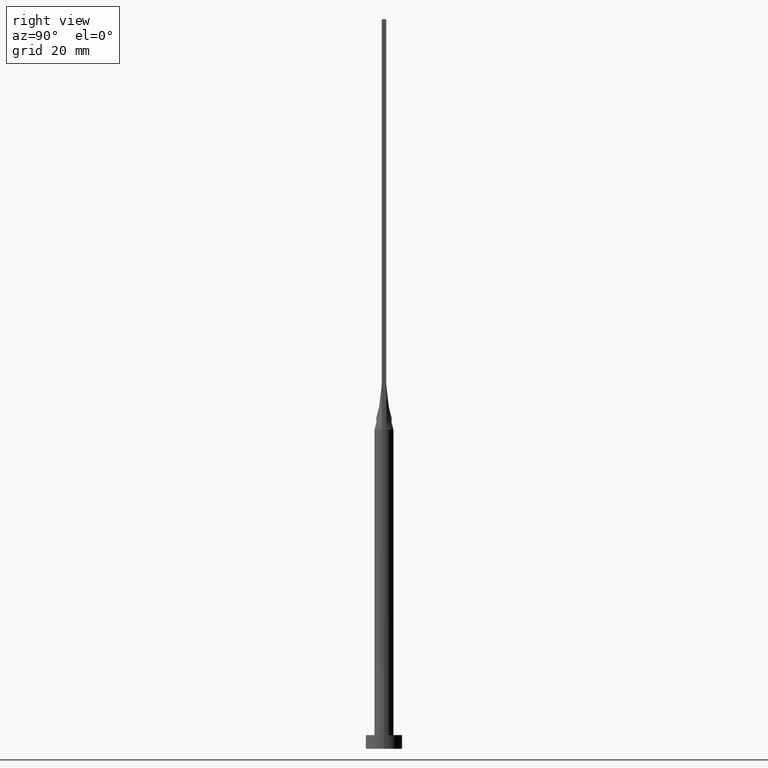
[diagram: clean part render]
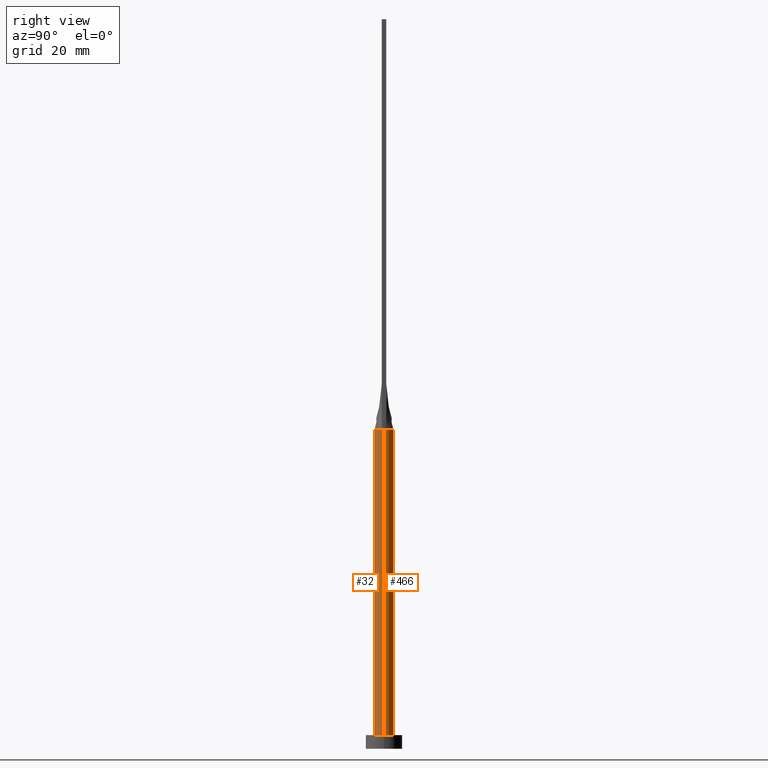
[diagram: same view with one multi-face feature highlighted, each face labeled with its STEP entity id]
A machine part, right view. The highlighted faces form ONE feature: a constant-radius fillet chain: 2 tangent blend faces with common blend radius 2.1 mm. The faces share edges in the B-rep.
Their STEP definitions:
[1] entity #466 (Cylinder):
#2 = EDGE_LOOP ( 'NONE', ( #580, #82, #55, #319, #169, #505 ) ) ;
#15 = DIRECTION ( 'NONE',  ( -0.000000000000000000, -0.000000000000000000, -1.000000000000000000 ) ) ;
#18 = DIRECTION ( 'NONE',  ( 0.000000000000000000, 0.000000000000000000, 1.000000000000000000 ) ) ;
#22 = CARTESIAN_POINT ( 'NONE',  ( -2.031019593402089818, 0.5344793603115657321, 70.00000000000000000 ) ) ;
#34 = VERTEX_POINT ( 'NONE', #460 ) ;
#41 = DIRECTION ( 'NONE',  ( 1.000000000000000000, 0.000000000000000000, 0.000000000000000000 ) ) ;
#43 = CARTESIAN_POINT ( 'NONE',  ( 2.030996101999494652, 0.5344731476277209126, 70.00000000000000000 ) ) ;
#49 = DIRECTION ( 'NONE',  ( -0.000000000000000000, -0.000000000000000000, -1.000000000000000000 ) ) ;
#55 = ORIENTED_EDGE ( 'NONE', *, *, #74, .T. ) ;
#61 = AXIS2_PLACEMENT_3D ( 'NONE', #158, #225, #394 ) ;
#64 = CARTESIAN_POINT ( 'NONE',  ( -1.021961681204346384, 1.852908961101259022, 70.00000000000001421 ) ) ;
#69 = CARTESIAN_POINT ( 'NONE',  ( -1.719043754744861596, 1.223020672007445242, 70.00000000000000000 ) ) ;
#74 = EDGE_CURVE ( 'NONE', #34, #534, #547, .T. ) ;
#78 = VECTOR ( 'NONE', #49, 1000.000000000000000 ) ;
#82 = ORIENTED_EDGE ( 'NONE', *, *, #223, .T. ) ;
#89 = CARTESIAN_POINT ( 'NONE',  ( 0.000000000000000000, 0.000000000000000000, 70.00000000000000000 ) ) ;
#92 = CARTESIAN_POINT ( 'NONE',  ( 1.987786580065029174, 0.6981017315960605929, 70.00000000000000000 ) ) ;
#98 = CARTESIAN_POINT ( 'NONE',  ( -0.5389299406762299016, 2.046272663899431965, 70.00000000000001421 ) ) ;
#130 = VERTEX_POINT ( 'NONE', #22 ) ;
#144 = CARTESIAN_POINT ( 'NONE',  ( -1.987786580065029174, 0.6981017315960602598, 70.00000000000000000 ) ) ;
#158 = CARTESIAN_POINT ( 'NONE',  ( 0.000000000000000000, 0.000000000000000000, 70.00000000000000000 ) ) ;
#160 = VECTOR ( 'NONE', #15, 1000.000000000000000 ) ;
#164 = DIRECTION ( 'NONE',  ( -0.000000000000000000, -0.000000000000000000, -1.000000000000000000 ) ) ;
#167 = DIRECTION ( 'NONE',  ( -1.000000000000000000, 0.000000000000000000, 0.000000000000000000 ) ) ;
#169 = ORIENTED_EDGE ( 'NONE', *, *, #296, .F. ) ;
#186 = CARTESIAN_POINT ( 'NONE',  ( 0.000000000000000000, 0.000000000000000000, 3.000000000000000000 ) ) ;
#191 = CARTESIAN_POINT ( 'NONE',  ( -2.100000000000000089, 0.000000000000000000, 70.00000000000000000 ) ) ;
#205 = DIRECTION ( 'NONE',  ( 0.000000000000000000, 0.000000000000000000, 1.000000000000000000 ) ) ;
#207 = LINE ( 'NONE', #573, #78 ) ;
#210 = EDGE_CURVE ( 'NONE', #304, #457, #260, .T. ) ;
#223 = EDGE_CURVE ( 'NONE', #304, #34, #207, .T. ) ;
#225 = DIRECTION ( 'NONE',  ( 0.000000000000000000, 0.000000000000000000, 1.000000000000000000 ) ) ;
#228 = CARTESIAN_POINT ( 'NONE',  ( 1.583604922800830428, 1.399063468093436624, 70.00000000000000000 ) ) ;
#236 = CARTESIAN_POINT ( 'NONE',  ( 0.5389299406762297906, 2.046272663899431077, 70.00000000000000000 ) ) ;
#239 = CARTESIAN_POINT ( 'NONE',  ( 1.719043754744862040, 1.223020672007445464, 69.99999999999998579 ) ) ;
#260 = CIRCLE ( 'NONE', #416, 2.100000000000000089 ) ;
#273 = CARTESIAN_POINT ( 'NONE',  ( 0.000000000000000000, 0.000000000000000000, 70.00000000000000000 ) ) ;
#276 = CARTESIAN_POINT ( 'NONE',  ( -1.235326090059014836, 1.714395692508636326, 70.00000000000001421 ) ) ;
#281 = AXIS2_PLACEMENT_3D ( 'NONE', #89, #164, #167 ) ;
#296 = EDGE_CURVE ( 'NONE', #130, #443, #311, .T. ) ;
#304 = VERTEX_POINT ( 'NONE', #489 ) ;
#311 = CIRCLE ( 'NONE', #61, 2.100000000000000089 ) ;
#319 = ORIENTED_EDGE ( 'NONE', *, *, #493, .F. ) ;
#320 = CARTESIAN_POINT ( 'NONE',  ( -2.100000000000000089, -1.080980291041873360E-16, 70.00000000000000000 ) ) ;
#323 = EDGE_CURVE ( 'NONE', #457, #130, #417, .T. ) ;
#324 = CARTESIAN_POINT ( 'NONE',  ( -0.2698109971861040179, 2.100000000000000089, 70.00000000000001421 ) ) ;
#369 = DIRECTION ( 'NONE',  ( 1.000000000000000000, 0.000000000000000000, 0.000000000000000000 ) ) ;
#374 = LINE ( 'NONE', #191, #160 ) ;
#380 = CARTESIAN_POINT ( 'NONE',  ( 1.235326090059014614, 1.714395692508636770, 70.00000000000001421 ) ) ;
#394 = DIRECTION ( 'NONE',  ( 1.000000000000000000, 0.000000000000000000, 0.000000000000000000 ) ) ;
#397 = FACE_OUTER_BOUND ( 'NONE', #2, .T. ) ;
#416 = AXIS2_PLACEMENT_3D ( 'NONE', #273, #205, #41 ) ;
#417 = B_SPLINE_CURVE_WITH_KNOTS ( 'NONE', 3,
 ( #502, #92, #512, #239, #228, #380, #477, #236, #473, #324, #98, #64, #276, #423, #69, #556, #144, #470 ),
 .UNSPECIFIED., .F., .F.,
 ( 4, 2, 2, 2, 2, 2, 2, 2, 4 ),
 ( 0.000000000000000000, 0.1250000000000000278, 0.2500000000000000555, 0.3750000000000001110, 0.5000000000000000000, 0.6250000000000000000, 0.7500000000000000000, 0.8750000000000001110, 1.000000000000000000 ),
 .UNSPECIFIED. ) ;
#423 = CARTESIAN_POINT ( 'NONE',  ( -1.583604922800830428, 1.399063468093436402, 70.00000000000000000 ) ) ;
#443 = VERTEX_POINT ( 'NONE', #320 ) ;
#457 = VERTEX_POINT ( 'NONE', #43 ) ;
#460 = CARTESIAN_POINT ( 'NONE',  ( 2.100000000000000089, 2.571758278209441957E-16, 3.000000000000000000 ) ) ;
#466 = ADVANCED_FACE ( 'NONE', ( #397 ), #497, .T. ) ;
#470 = CARTESIAN_POINT ( 'NONE',  ( -2.031019593402089818, 0.5344793603115657321, 70.00000000000000000 ) ) ;
#473 = CARTESIAN_POINT ( 'NONE',  ( 0.2698109971861041290, 2.100000000000000089, 70.00000000000000000 ) ) ;
#477 = CARTESIAN_POINT ( 'NONE',  ( 1.021961681204346606, 1.852908961101259244, 70.00000000000001421 ) ) ;
#489 = CARTESIAN_POINT ( 'NONE',  ( 2.100000000000000089, 3.372022381799045987E-17, 70.00000000000000000 ) ) ;
#493 = EDGE_CURVE ( 'NONE', #443, #534, #374, .T. ) ;
#497 = CYLINDRICAL_SURFACE ( 'NONE', #281, 2.100000000000000089 ) ;
#502 = CARTESIAN_POINT ( 'NONE',  ( 2.030996101999494652, 0.5344731476277209126, 70.00000000000000000 ) ) ;
#505 = ORIENTED_EDGE ( 'NONE', *, *, #323, .F. ) ;
#510 = AXIS2_PLACEMENT_3D ( 'NONE', #186, #18, #369 ) ;
#511 = CARTESIAN_POINT ( 'NONE',  ( -2.100000000000000089, 0.000000000000000000, 3.000000000000000000 ) ) ;
#512 = CARTESIAN_POINT ( 'NONE',  ( 1.920830191244603746, 0.8725264301372623876, 69.99999999999998579 ) ) ;
#534 = VERTEX_POINT ( 'NONE', #511 ) ;
#547 = CIRCLE ( 'NONE', #510, 2.100000000000000089 ) ;
#556 = CARTESIAN_POINT ( 'NONE',  ( -1.920830191244604412, 0.8725264301372623876, 70.00000000000000000 ) ) ;
#573 = CARTESIAN_POINT ( 'NONE',  ( 2.100000000000000089, 2.571758278209441957E-16, 70.00000000000000000 ) ) ;
#580 = ORIENTED_EDGE ( 'NONE', *, *, #210, .F. ) ;
[2] entity #32 (Cylinder):
#14 = CYLINDRICAL_SURFACE ( 'NONE', #33, 2.100000000000000089 ) ;
#15 = DIRECTION ( 'NONE',  ( -0.000000000000000000, -0.000000000000000000, -1.000000000000000000 ) ) ;
#32 = ADVANCED_FACE ( 'NONE', ( #413 ), #14, .T. ) ;
#33 = AXIS2_PLACEMENT_3D ( 'NONE', #176, #142, #419 ) ;
#34 = VERTEX_POINT ( 'NONE', #460 ) ;
#49 = DIRECTION ( 'NONE',  ( -0.000000000000000000, -0.000000000000000000, -1.000000000000000000 ) ) ;
#78 = VECTOR ( 'NONE', #49, 1000.000000000000000 ) ;
#80 = VERTEX_POINT ( 'NONE', #372 ) ;
#88 = ORIENTED_EDGE ( 'NONE', *, *, #223, .F. ) ;
#95 = DIRECTION ( 'NONE',  ( 0.000000000000000000, 0.000000000000000000, 1.000000000000000000 ) ) ;
#102 = CIRCLE ( 'NONE', #376, 2.100000000000000089 ) ;
#135 = DIRECTION ( 'NONE',  ( 1.000000000000000000, 4.440892098500626951E-15, 0.000000000000000000 ) ) ;
#142 = DIRECTION ( 'NONE',  ( -0.000000000000000000, -0.000000000000000000, -1.000000000000000000 ) ) ;
#160 = VECTOR ( 'NONE', #15, 1000.000000000000000 ) ;
#162 = ORIENTED_EDGE ( 'NONE', *, *, #493, .T. ) ;
#176 = CARTESIAN_POINT ( 'NONE',  ( 0.000000000000000000, 0.000000000000000000, 70.00000000000000000 ) ) ;
#188 = CIRCLE ( 'NONE', #532, 2.100000000000000089 ) ;
#189 = CIRCLE ( 'NONE', #496, 2.100000000000000089 ) ;
#191 = CARTESIAN_POINT ( 'NONE',  ( -2.100000000000000089, 0.000000000000000000, 70.00000000000000000 ) ) ;
#207 = LINE ( 'NONE', #573, #78 ) ;
#208 = VERTEX_POINT ( 'NONE', #452 ) ;
#209 = DIRECTION ( 'NONE',  ( 1.000000000000000000, 0.000000000000000000, 0.000000000000000000 ) ) ;
#223 = EDGE_CURVE ( 'NONE', #304, #34, #207, .T. ) ;
#224 = ORIENTED_EDGE ( 'NONE', *, *, #529, .T. ) ;
#238 = DIRECTION ( 'NONE',  ( 1.000000000000000000, 0.000000000000000000, 0.000000000000000000 ) ) ;
#269 = CARTESIAN_POINT ( 'NONE',  ( 0.000000000000000000, 0.000000000000000000, 70.00000000000000000 ) ) ;
#275 = DIRECTION ( 'NONE',  ( 1.000000000000000000, 0.000000000000000000, 0.000000000000000000 ) ) ;
#304 = VERTEX_POINT ( 'NONE', #489 ) ;
#320 = CARTESIAN_POINT ( 'NONE',  ( -2.100000000000000089, -1.080980291041873360E-16, 70.00000000000000000 ) ) ;
#327 = CARTESIAN_POINT ( 'NONE',  ( 0.000000000000000000, 0.000000000000000000, 70.00000000000000000 ) ) ;
#372 = CARTESIAN_POINT ( 'NONE',  ( -2.031004407172260162, -0.5344754071304557153, 70.00000000000000000 ) ) ;
#374 = LINE ( 'NONE', #191, #160 ) ;
#376 = AXIS2_PLACEMENT_3D ( 'NONE', #542, #95, #135 ) ;
#395 = ORIENTED_EDGE ( 'NONE', *, *, #501, .F. ) ;
#406 = ORIENTED_EDGE ( 'NONE', *, *, #455, .F. ) ;
#413 = FACE_OUTER_BOUND ( 'NONE', #453, .T. ) ;
#419 = DIRECTION ( 'NONE',  ( -1.000000000000000000, 0.000000000000000000, 0.000000000000000000 ) ) ;
#443 = VERTEX_POINT ( 'NONE', #320 ) ;
#452 = CARTESIAN_POINT ( 'NONE',  ( 2.031027953490633031, -0.5344816358097418396, 70.00000000000000000 ) ) ;
#453 = EDGE_LOOP ( 'NONE', ( #88, #406, #495, #395, #162, #224 ) ) ;
#455 = EDGE_CURVE ( 'NONE', #208, #304, #102, .T. ) ;
#460 = CARTESIAN_POINT ( 'NONE',  ( 2.100000000000000089, 2.571758278209441957E-16, 3.000000000000000000 ) ) ;
#461 = DIRECTION ( 'NONE',  ( 0.000000000000000000, 0.000000000000000000, 1.000000000000000000 ) ) ;
#463 = EDGE_CURVE ( 'NONE', #80, #208, #188, .T. ) ;
#472 = CARTESIAN_POINT ( 'NONE',  ( 0.000000000000000000, 0.000000000000000000, 3.000000000000000000 ) ) ;
#479 = AXIS2_PLACEMENT_3D ( 'NONE', #472, #461, #238 ) ;
#489 = CARTESIAN_POINT ( 'NONE',  ( 2.100000000000000089, 3.372022381799045987E-17, 70.00000000000000000 ) ) ;
#492 = DIRECTION ( 'NONE',  ( 0.000000000000000000, 0.000000000000000000, 1.000000000000000000 ) ) ;
#493 = EDGE_CURVE ( 'NONE', #443, #534, #374, .T. ) ;
#495 = ORIENTED_EDGE ( 'NONE', *, *, #463, .F. ) ;
#496 = AXIS2_PLACEMENT_3D ( 'NONE', #327, #559, #275 ) ;
#501 = EDGE_CURVE ( 'NONE', #443, #80, #189, .T. ) ;
#511 = CARTESIAN_POINT ( 'NONE',  ( -2.100000000000000089, 0.000000000000000000, 3.000000000000000000 ) ) ;
#529 = EDGE_CURVE ( 'NONE', #534, #34, #550, .T. ) ;
#532 = AXIS2_PLACEMENT_3D ( 'NONE', #269, #492, #209 ) ;
#534 = VERTEX_POINT ( 'NONE', #511 ) ;
#542 = CARTESIAN_POINT ( 'NONE',  ( 0.000000000000000000, 0.000000000000000000, 70.00000000000000000 ) ) ;
#550 = CIRCLE ( 'NONE', #479, 2.100000000000000089 ) ;
#559 = DIRECTION ( 'NONE',  ( 0.000000000000000000, 0.000000000000000000, 1.000000000000000000 ) ) ;
#573 = CARTESIAN_POINT ( 'NONE',  ( 2.100000000000000089, 2.571758278209441957E-16, 70.00000000000000000 ) ) ;